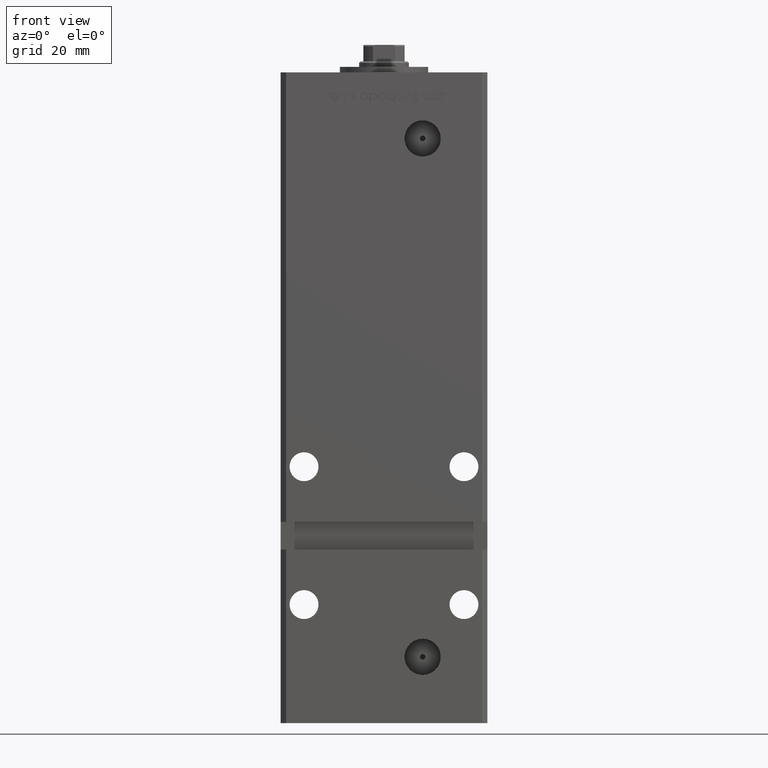
[diagram: clean part render]
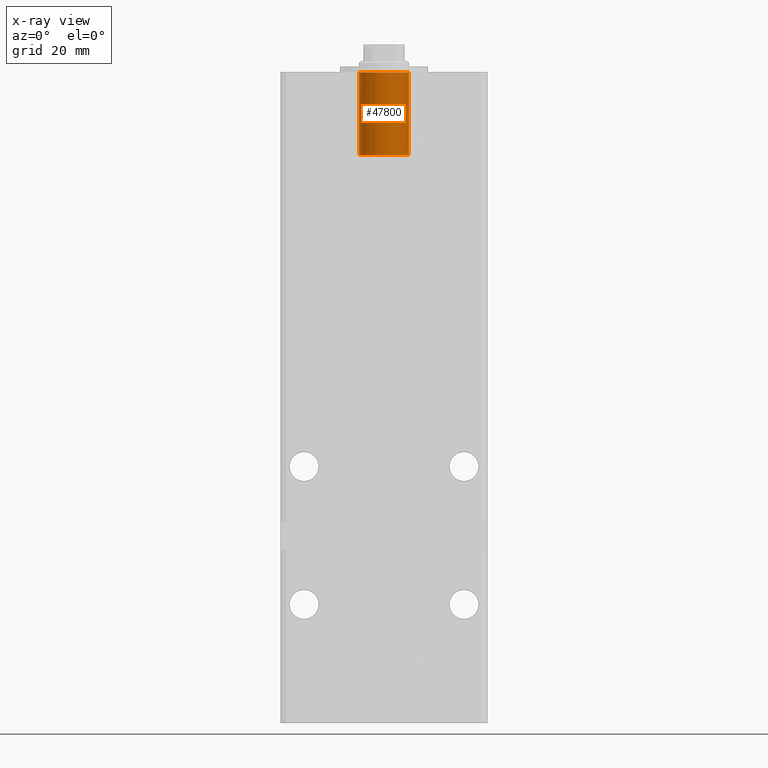
[diagram: x-ray — body ghosted, one internal face saturated and labeled with its STEP entity id]
A machine part, front view, then the same camera in x-ray: the body is ghosted and one INTERNAL B-rep face — a face not visible from any outside direction — is saturated and labeled: STEP entity #47800.
In plain terms, the highlighted cylindrical surface (edge-blend (fillet) strip) has radius 9 mm, axis along (0, 0, 1).
Its self-contained STEP definition (entity closure, byte-faithful):
#399 = LINE ( 'NONE', #1188, #48532 ) ;
#1188 = CARTESIAN_POINT ( 'NONE',  ( -8.999999999999996447, -5.836711784674611255E-15, -30.00000000000000000 ) ) ;
#1883 = AXIS2_PLACEMENT_3D ( 'NONE', #41724, #5407, #4875 ) ;
#2427 = ORIENTED_EDGE ( 'NONE', *, *, #30072, .T. ) ;
#4019 = VERTEX_POINT ( 'NONE', #20090 ) ;
#4875 = DIRECTION ( 'NONE',  ( 1.000000000000000000, 0.000000000000000000, 0.000000000000000000 ) ) ;
#5368 = DIRECTION ( 'NONE',  ( -0.000000000000000000, -0.000000000000000000, 1.000000000000000000 ) ) ;
#5407 = DIRECTION ( 'NONE',  ( 0.000000000000000000, 0.000000000000000000, 1.000000000000000000 ) ) ;
#5930 = VERTEX_POINT ( 'NONE', #23032 ) ;
#6472 = LINE ( 'NONE', #47899, #20272 ) ;
#7349 = DIRECTION ( 'NONE',  ( 1.000000000000000000, 0.000000000000000000, 0.000000000000000000 ) ) ;
#10582 = DIRECTION ( 'NONE',  ( 0.000000000000000000, 0.000000000000000000, 1.000000000000000000 ) ) ;
#13444 = CARTESIAN_POINT ( 'NONE',  ( 0.000000000000000000, -6.938893903907228378E-15, -30.00000000000000000 ) ) ;
#14836 = EDGE_CURVE ( 'NONE', #5930, #33708, #21658, .T. ) ;
#15978 = AXIS2_PLACEMENT_3D ( 'NONE', #32105, #10582, #7349 ) ;
#16313 = EDGE_LOOP ( 'NONE', ( #38495, #23877, #2427, #41131 ) ) ;
#17427 = VERTEX_POINT ( 'NONE', #21752 ) ;
#17688 = CIRCLE ( 'NONE', #15978, 8.999999999999996447 ) ;
#20090 = CARTESIAN_POINT ( 'NONE',  ( 8.999999999999996447, -6.938893903907228378E-15, 0.000000000000000000 ) ) ;
#20272 = VECTOR ( 'NONE', #39305, 1000.000000000000000 ) ;
#21658 = CIRCLE ( 'NONE', #1883, 8.999999999999996447 ) ;
#21752 = CARTESIAN_POINT ( 'NONE',  ( -8.999999999999996447, -5.836711784674611255E-15, 0.000000000000000000 ) ) ;
#23032 = CARTESIAN_POINT ( 'NONE',  ( -8.999999999999996447, -5.836711784674611255E-15, -30.00000000000000000 ) ) ;
#23877 = ORIENTED_EDGE ( 'NONE', *, *, #27026, .T. ) ;
#25388 = AXIS2_PLACEMENT_3D ( 'NONE', #13444, #5368, #26612 ) ;
#26612 = DIRECTION ( 'NONE',  ( 1.000000000000000000, 0.000000000000000000, 0.000000000000000000 ) ) ;
#27026 = EDGE_CURVE ( 'NONE', #5930, #17427, #399, .T. ) ;
#29537 = EDGE_CURVE ( 'NONE', #33708, #4019, #6472, .T. ) ;
#30072 = EDGE_CURVE ( 'NONE', #17427, #4019, #17688, .T. ) ;
#30652 = CYLINDRICAL_SURFACE ( 'NONE', #25388, 8.999999999999996447 ) ;
#32105 = CARTESIAN_POINT ( 'NONE',  ( 0.000000000000000000, -6.938893903907228378E-15, 0.000000000000000000 ) ) ;
#32128 = CARTESIAN_POINT ( 'NONE',  ( 8.999999999999996447, -6.938893903907228378E-15, -30.00000000000000000 ) ) ;
#33476 = DIRECTION ( 'NONE',  ( -0.000000000000000000, -0.000000000000000000, 1.000000000000000000 ) ) ;
#33708 = VERTEX_POINT ( 'NONE', #32128 ) ;
#37934 = FACE_OUTER_BOUND ( 'NONE', #16313, .T. ) ;
#38495 = ORIENTED_EDGE ( 'NONE', *, *, #14836, .F. ) ;
#39305 = DIRECTION ( 'NONE',  ( -0.000000000000000000, -0.000000000000000000, 1.000000000000000000 ) ) ;
#41131 = ORIENTED_EDGE ( 'NONE', *, *, #29537, .F. ) ;
#41724 = CARTESIAN_POINT ( 'NONE',  ( 0.000000000000000000, -6.938893903907228378E-15, -30.00000000000000000 ) ) ;
#47800 = ADVANCED_FACE ( 'NONE', ( #37934 ), #30652, .F. ) ;
#47899 = CARTESIAN_POINT ( 'NONE',  ( 8.999999999999996447, -6.938893903907228378E-15, -30.00000000000000000 ) ) ;
#48532 = VECTOR ( 'NONE', #33476, 1000.000000000000000 ) ;